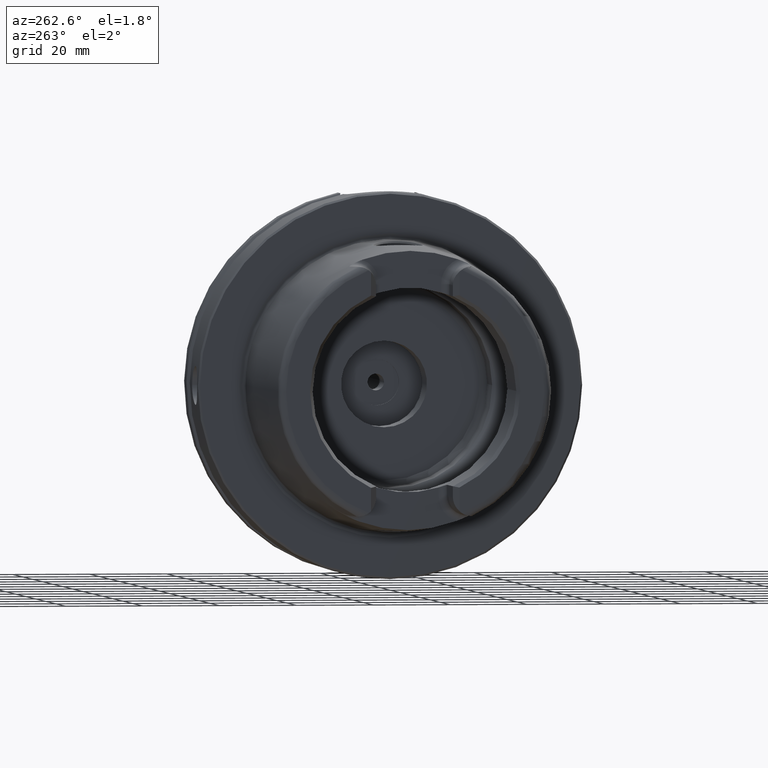
[diagram: clean part render]
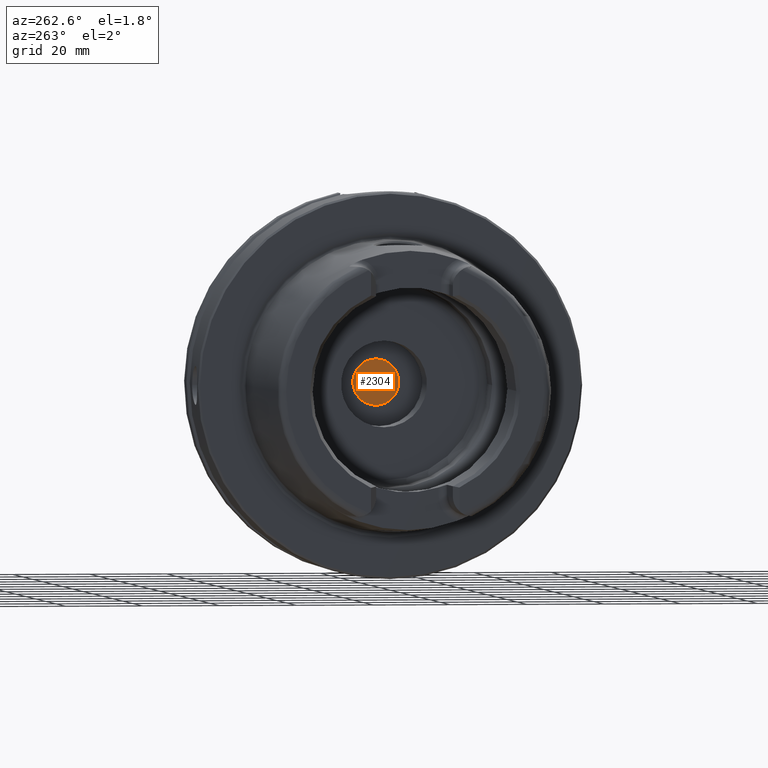
[diagram: same view with one face highlighted and labeled with its STEP entity id]
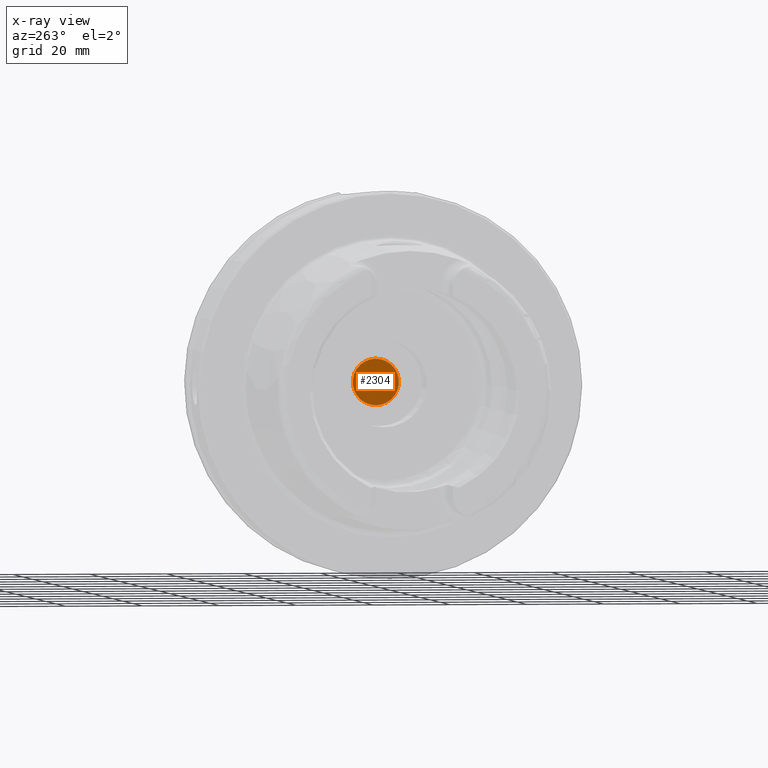
[diagram: x-ray of the same camera — body ghosted, the highlighted face saturated]
A machine part, auxiliary view. The second image highlights one B-rep face of the part: STEP entity #2304.
The next image is the same camera in x-ray: the body ghosted, the highlighted face saturated — about 0% of this face is hidden behind the body in this view.
In plain terms, the highlighted planar face has unit normal (-1, 0, 0).
Its self-contained STEP definition (entity closure, byte-faithful):
#95=FACE_BOUND('',#594,.T.);
#107=PLANE('',#2532);
#455=FACE_OUTER_BOUND('',#593,.T.);
#593=EDGE_LOOP('',(#1668));
#594=EDGE_LOOP('',(#1669));
#779=CIRCLE('',#2531,2.15);
#780=CIRCLE('',#2533,6.);
#955=VERTEX_POINT('',#3698);
#956=VERTEX_POINT('',#3702);
#1222=EDGE_CURVE('',#955,#955,#779,.T.);
#1223=EDGE_CURVE('',#956,#956,#780,.T.);
#1668=ORIENTED_EDGE('',*,*,#1223,.T.);
#1669=ORIENTED_EDGE('',*,*,#1222,.T.);
#2304=ADVANCED_FACE('',(#455,#95),#107,.T.);
#2531=AXIS2_PLACEMENT_3D('',#3700,#2973,#2974);
#2532=AXIS2_PLACEMENT_3D('',#3701,#2975,#2976);
#2533=AXIS2_PLACEMENT_3D('',#3703,#2977,#2978);
#2973=DIRECTION('center_axis',(1.,0.,0.));
#2974=DIRECTION('ref_axis',(0.,0.,-1.));
#2975=DIRECTION('center_axis',(-1.,0.,0.));
#2976=DIRECTION('ref_axis',(0.,0.,1.));
#2977=DIRECTION('center_axis',(-1.,0.,0.));
#2978=DIRECTION('ref_axis',(0.,0.,1.));
#3698=CARTESIAN_POINT('',(29.,-2.63299061816681E-16,2.15));
#3700=CARTESIAN_POINT('Origin',(29.,0.,0.));
#3701=CARTESIAN_POINT('Origin',(29.,25.,0.));
#3702=CARTESIAN_POINT('',(29.,-7.34788079488412E-16,-6.));
#3703=CARTESIAN_POINT('Origin',(29.,0.,0.));